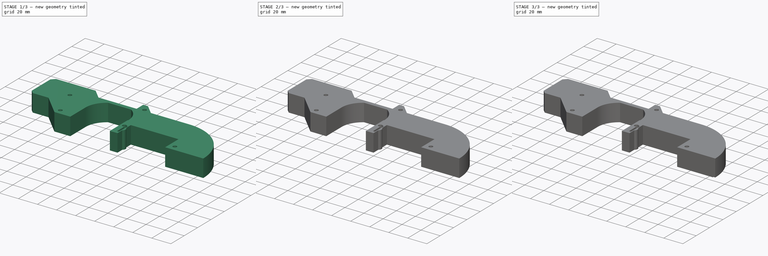
[diagram: build sequence overview — one tinted view per stage of 3, left to right]
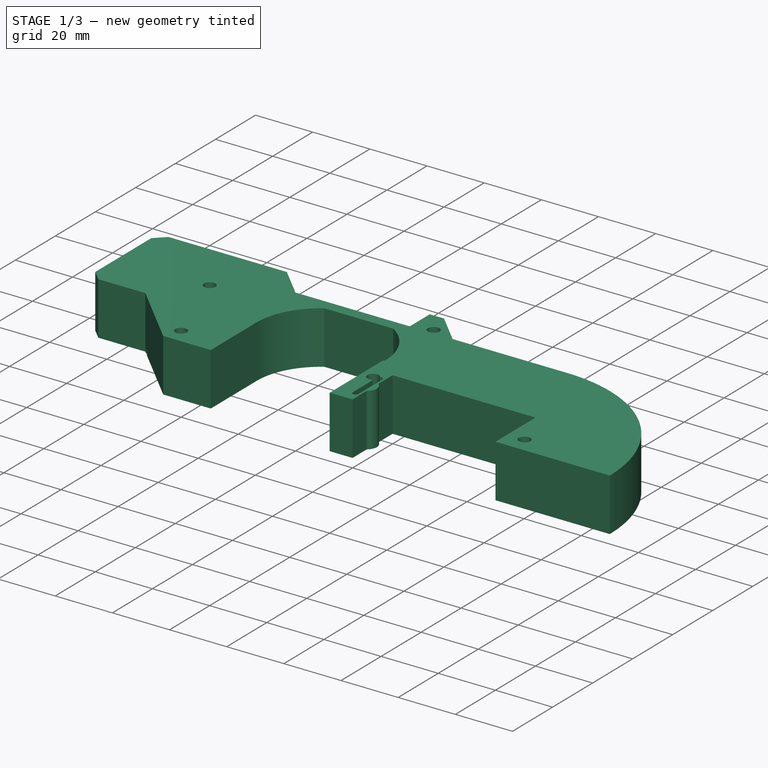
[diagram: stage 1 of 3 — iso view after this stage's code; geometry added in this stage tinted green]
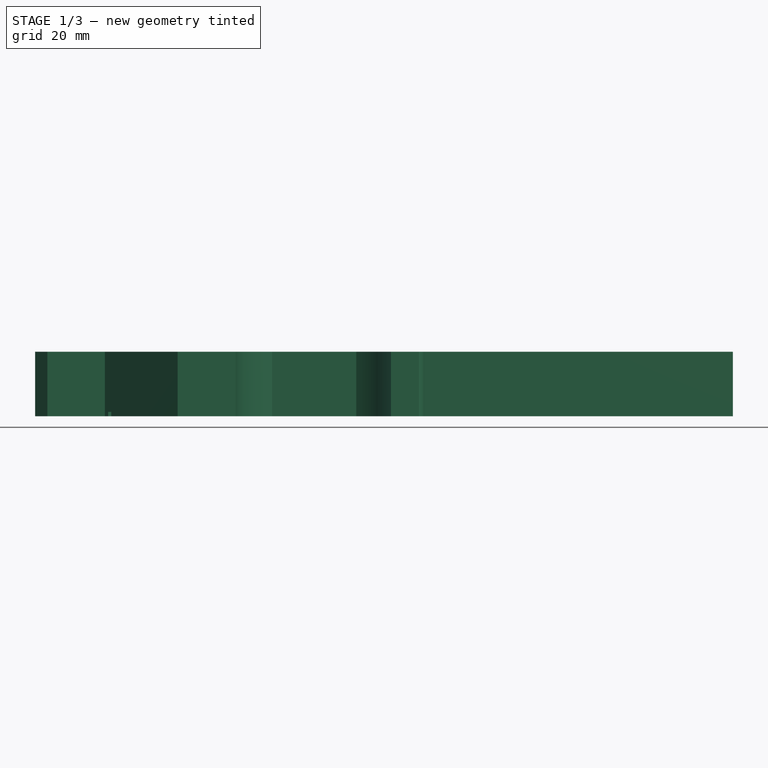
[diagram: stage 1 of 3 — front view after this stage's code; geometry added in this stage tinted green]
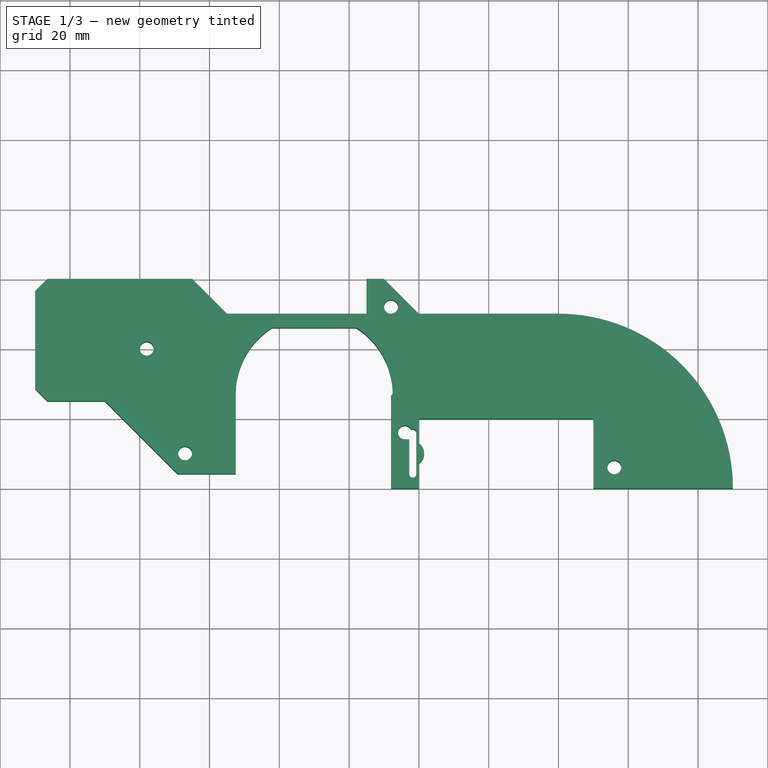
[diagram: stage 1 of 3 — top view after this stage's code; geometry added in this stage tinted green]
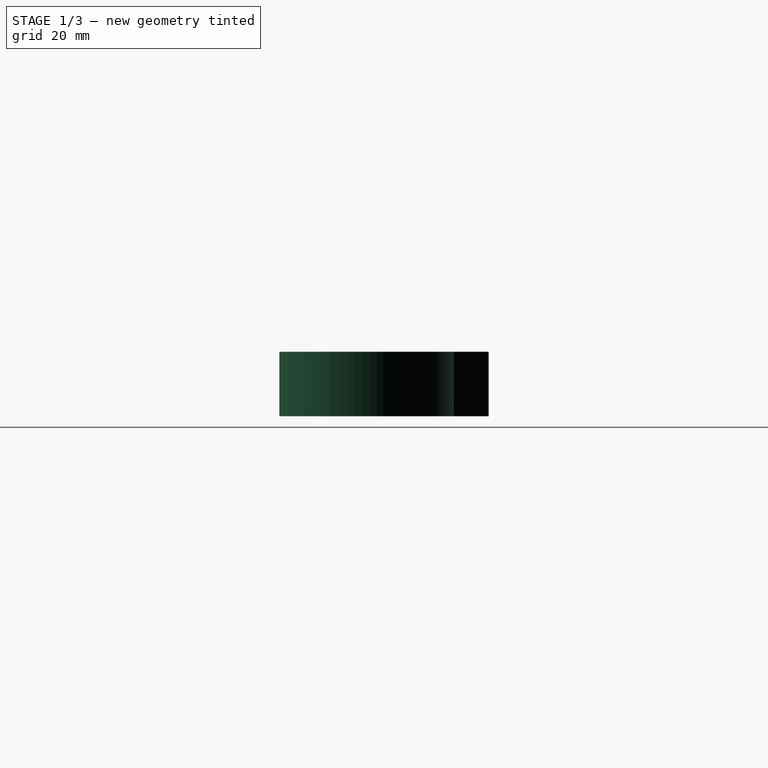
[diagram: stage 1 of 3 — right view after this stage's code; geometry added in this stage tinted green]
FCSTD DOCUMENT  (FreeCAD 0.18.4R)
Label: guide-right
License: All rights reserved
LicenseURL: http://en.wikipedia.org/wiki/All_rights_reserved
objects: Sketcher::SketchObject×7, PartDesign::Pocket×4, PartDesign::Pad×1, PartDesign::Plane×1, PartDesign::SubtractivePipe×1, Spreadsheet::Sheet×1, PartDesign::Body×1
note: 21 computed .brp shape members not serialized (recipe doc carries the construction recipe); baked Part::Feature solids carry a one-line shape summary decoded from their .brp

FEATURE [Sketcher::SketchObject] Sketch
  MapMode = 5
  Support = -> [XY_Plane001]
  sketch-geometry (40):
    g0: LineSegment StartX=0 StartY=20 StartZ=0 EndX=50 EndY=20 EndZ=0
    g1: LineSegment StartX=50 StartY=20 StartZ=0 EndX=50 EndY=0 EndZ=0
    g2: LineSegment StartX=50 StartY=0 StartZ=0 EndX=90 EndY=0 EndZ=0
    g3: LineSegment StartX=0 StartY=0 StartZ=0 EndX=-8 EndY=0 EndZ=0
    g4: LineSegment StartX=-52.5 StartY=4.14 StartZ=0 EndX=-69.14 EndY=4.14 EndZ=0
    g5: LineSegment StartX=-69.14 StartY=4.14 StartZ=0 EndX=-90 EndY=25 EndZ=0
    g6: LineSegment StartX=-90 StartY=25 StartZ=0 EndX=-106.464 EndY=25 EndZ=0
    g7: LineSegment StartX=-106.464 StartY=25 StartZ=0 EndX=-110 EndY=28.5355 EndZ=0
    g8: LineSegment StartX=-110 StartY=28.5355 StartZ=0 EndX=-110 EndY=56.4645 EndZ=0
    g9: LineSegment StartX=-110 StartY=56.4645 StartZ=0 EndX=-106.464 EndY=60 EndZ=0
    g10: LineSegment StartX=-106.464 StartY=60 StartZ=0 EndX=-65 EndY=60 EndZ=0
    g11: LineSegment StartX=-65 StartY=60 StartZ=0 EndX=-55 EndY=50 EndZ=0
    g12: LineSegment StartX=-55 StartY=50 StartZ=0 EndX=-15 EndY=50 EndZ=0
    g13: LineSegment StartX=-15 StartY=50 StartZ=0 EndX=-15 EndY=60 EndZ=0
    g14: LineSegment StartX=-15 StartY=60 StartZ=0 EndX=-10 EndY=60 EndZ=0
    g15: LineSegment StartX=-10 StartY=60 StartZ=0 EndX=0 EndY=50 EndZ=0
    g16: LineSegment StartX=0 StartY=50 StartZ=0 EndX=40 EndY=50 EndZ=0
    g17: ArcOfCircle CenterX=40 CenterY=0 CenterZ=0 NormalX=0 NormalY=0 NormalZ=1 AngleXU=0 Radius=50 StartAngle=0 EndAngle=1.5708
    g18: Circle CenterX=56 CenterY=6 CenterZ=0 NormalX=0 NormalY=0 NormalZ=1 AngleXU=0 Radius=2
    g19: ArcOfCircle CenterX=-4 CenterY=16 CenterZ=0 NormalX=0 NormalY=0 NormalZ=1 AngleXU=0 Radius=2 StartAngle=0.460493 EndAngle=4.71239
    g20: Circle CenterX=-8 CenterY=52 CenterZ=0 NormalX=0 NormalY=0 NormalZ=1 AngleXU=0 Radius=2
    g21: Circle CenterX=-67 CenterY=10 CenterZ=0 NormalX=0 NormalY=0 NormalZ=1 AngleXU=0 Radius=2
    g22: Circle CenterX=-78 CenterY=40 CenterZ=0 NormalX=0 NormalY=0 NormalZ=1 AngleXU=0 Radius=2
    g23: Circle [constr] CenterX=-30 CenterY=27 CenterZ=0 NormalX=0 NormalY=0 NormalZ=1 AngleXU=0 Radius=3.25
    g24: ArcOfCircle CenterX=-30 CenterY=27 CenterZ=0 NormalX=0 NormalY=0 NormalZ=1 AngleXU=0 Radius=22.5 StartAngle=0 EndAngle=1.00553
    g25: LineSegment StartX=-52.5 StartY=4.14 StartZ=0 EndX=-52.5 EndY=27 EndZ=0
    g26: LineSegment StartX=-42.052 StartY=46 StartZ=0 EndX=-17.948 EndY=46 EndZ=0
    g27: ArcOfCircle CenterX=-30 CenterY=27 CenterZ=0 NormalX=0 NormalY=0 NormalZ=1 AngleXU=0 Radius=22.5 StartAngle=2.13607 EndAngle=3.14159
    g28: LineSegment StartX=-7.5 StartY=27 StartZ=0 EndX=-8 EndY=26.5 EndZ=0
    g29: LineSegment StartX=-8 StartY=26.5 StartZ=0 EndX=-8 EndY=0 EndZ=0
    g30: LineSegment StartX=0 StartY=20 StartZ=0 EndX=0 EndY=12.8723 EndZ=0
    g31: LineSegment StartX=0 StartY=0 StartZ=0 EndX=-4e-16 EndY=7.12772 EndZ=0
    g32: ArcOfCircle CenterX=-2 CenterY=10 CenterZ=0 NormalX=0 NormalY=0 NormalZ=1 AngleXU=0 Radius=3.5 StartAngle=5.32063 EndAngle=7.24574
    g33: ArcOfCircle CenterX=-1.75 CenterY=16 CenterZ=0 NormalX=0 NormalY=0 NormalZ=1 AngleXU=0 Radius=1 StartAngle=3e-16 EndAngle=2.04692
    g34: ArcOfCircle CenterX=-1.75 CenterY=4 CenterZ=0 NormalX=0 NormalY=0 NormalZ=1 AngleXU=0 Radius=1 StartAngle=3.14159 EndAngle=6.28319
    g35: LineSegment StartX=-2.75 StartY=14 StartZ=0 EndX=-2.75 EndY=4 EndZ=0
    g36: LineSegment StartX=-0.75 StartY=16 StartZ=0 EndX=-0.75 EndY=4 EndZ=0
    g37: LineSegment [constr] StartX=-2.75 StartY=10 StartZ=0 EndX=-0.75 EndY=10 EndZ=0
    g38: LineSegment StartX=-4 StartY=14 StartZ=0 EndX=-2.75 EndY=14 EndZ=0
    g39: LineSegment [constr] StartX=-1.75 StartY=16 StartZ=0 EndX=-1.75 EndY=4 EndZ=0
  constraints (120):
    c: PointOnObject(g0,g-2)
    c: Horizontal(g0)
    c: Coincident(g0,g1)
    c: PointOnObject(g1,g-1)
    c: Vertical(g1)
    c: Coincident(g1,g2)
    c: Horizontal(g2)
    c: PointOnObject(g3,g-1)
    c: Horizontal(g4)
    c: Coincident(g4,g5)
    c: Coincident(g5,g6)
    c: Horizontal(g6)
    c: Coincident(g6,g7)
    c: Coincident(g7,g8)
    c: Vertical(g8)
    c: Coincident(g8,g9)
    c: Coincident(g9,g10)
    c: Horizontal(g10)
    c: Coincident(g10,g11)
    c: Coincident(g11,g12)
    c: Horizontal(g12)
    c: Coincident(g12,g13)
    c: Vertical(g13)
    c: Coincident(g13,g14)
    c: Horizontal(g14)
    c: Coincident(g14,g15)
    c: Coincident(g15,g16)
    c: Horizontal(g16)
    c: Coincident(g17,g16)
    c: Coincident(g17,g2)
    c: Tangent(g17,g16)
    c: DistanceY(g-1,g0) = 20
    c: DistanceX(g-1,g1) = 50
    c: PointOnObject(g17,g2)
    c: DistanceX(g-1,g17) = 40
    c: Diameter(g17) = 100
    c: PointOnObject(g12,g16)
    c: PointOnObject(g15,g-2)
    c: Angle(g16,g15) = 2.35619
    c: DistanceY(g-1,g14) = 60
    c: DistanceY(g-1,g6) = 25
    c: DistanceX(g7,g-1) = 110
    c: Angle(g6,g7) = 2.35619
    c: Distance(g7) = 5
    c: Distance(g9) = 5
    c: Angle(g9,g10) = 2.35619
    c: PointOnObject(g10,g14)
    c: DistanceX(g5,g-1) = 90
    c: DistanceX(g4,g-1) = 69.14
    c: DistanceY(g-1,g4) = 4.14
    c: Diameter(g22) = 4
    c: Diameter(g21) = 4
    c: Diameter(g20) = 4
    c: Diameter(g19) = 4
    c: Diameter(g18) = 4
    c: DistanceX(g22,g-1) = 78
    c: DistanceY(g-1,g22) = 40
    c: DistanceX(g19,g-1) = 4
    c: DistanceY(g-1,g19) = 16
    c: DistanceY(g-1,g18) = 6
    c: DistanceX(g-1,g18) = 56
    c: DistanceX(g20,g-1) = 8
    c: DistanceY(g-1,g20) = 52
    c: DistanceY(g-1,g21) = 10
    c: DistanceX(g21,g-1) = 67
    c: Angle(g10,g11) = 2.35619
    c: DistanceX(g11,g-1) = 55
    c: DistanceY(g-1,g23) = 27
    c: DistanceX(g23,g-1) = 30
    c: Diameter(g23) = 6.5
    c: DistanceX(g12,g-1) = 15
    c: Coincident(g24,g23)
    c: Diameter(g24) = 45
    c: Coincident(g25,g4)
    c: Vertical(g25)
    c: Coincident(g27,g25)
    c: Tangent(g25,g24)
    c: Horizontal(g26)
    c: Equal(g24,g27)
    c: Coincident(g24,g26)
    c: Coincident(g27,g26)
    c: Coincident(g24,g27)
    c: DistanceY(g24,g12) = 4
    c: Coincident(g28,g29)
    c: Vertical(g29)
    c: Coincident(g29,g3)
    c: DistanceY(g-1,g24) = 27
    c: Angle(g29,g28) = 2.35619
    c: Coincident(g28,g24)
    c: DistanceX(g3,g-1) = 8
    c: Coincident(g0,g30)
    c: PointOnObject(g30,g-2)
    c: Coincident(g3,g31)
    c: PointOnObject(g31,g-2)
    c: Coincident(g32,g31)
    c: Coincident(g30,g32)
    c: DistanceY(g3,g32) = 10
    c: Coincident(g3,g-1)
    c: Diameter(g32) = 7
    c: DistanceX(g32,g3) = 2
    c: Tangent(g33,g36) = 1.5708
    c: Tangent(g35,g34) = -1.5708
    c: Tangent(g36,g34) = 1.5708
    c: Vertical(g35)
    c: Equal(g33,g34)
    c: PointOnObject(g37,g35)
    c: PointOnObject(g32,g37)
    c: DistanceX(g34,g3) = 0.75
    c: DistanceY(g34,g33) = 12
    c: Diameter(g34) = 2
    c: PointOnObject(g37,g36)
    c: Coincident(g33,g19)
    c: Symmetric(g33,g34,g37)
    c: Horizontal(g38)
    c: Tangent(g38,g19)
    c: Coincident(g19,g38)
    c: Coincident(g35,g38)
    c: Coincident(g39,g33)
    c: Coincident(g39,g34)
    c: Vertical(g39)
FEATURE [PartDesign::Pad] Pad
  Length = 18.5
  Length2 = 100
  Profile = -> Sketch
  Type = 0
FEATURE [PartDesign::Plane] DatumPlane
  Length = 205.672
  MapMode = 5
  Placement = pos=(-32.5,-32.5,0) rot=(0.862856,-0.357407,-0.357407;1.71777rad)
  ResizeMode = 0
  Support = -> [Pad]
  Width = 43.2529
FEATURE [Sketcher::SketchObject] Sketch002
  MapMode = 5
  Placement = pos=(-32.5,-32.5,0) rot=(0.862856,-0.357407,-0.357407;1.71777rad)
  Support = -> [DatumPlane]
  expr: Constraints[17] = Spreadsheet.tape_width - 6.75
  sketch-geometry (6):
    g0: LineSegment StartX=-80 StartY=-18.75 StartZ=0 EndX=-70 EndY=-18.75 EndZ=0
    g1: LineSegment StartX=-70 StartY=-18.75 StartZ=0 EndX=-70 EndY=-0.25 EndZ=0
    g2: LineSegment StartX=-70 StartY=-0.25 StartZ=0 EndX=-78.75 EndY=-0.25 EndZ=0
    g3: LineSegment StartX=-78.75 StartY=-0.25 StartZ=0 EndX=-78.75 EndY=1.25 EndZ=0
    g4: LineSegment StartX=-78.75 StartY=1.25 StartZ=0 EndX=-80 EndY=1.25 EndZ=0
    g5: LineSegment StartX=-80 StartY=1.25 StartZ=0 EndX=-80 EndY=-18.75 EndZ=0
  constraints (18):
    c: Horizontal(g0)
    c: Coincident(g0,g1)
    c: Vertical(g1)
    c: Coincident(g1,g2)
    c: Horizontal(g2)
    c: Coincident(g2,g3)
    c: Vertical(g3)
    c: Coincident(g3,g4)
    c: Horizontal(g4)
    c: Coincident(g4,g5)
    c: Coincident(g5,g0)
    c: Vertical(g5)
    c: DistanceY(g3,g3) = 1.5
    c: DistanceX(g4,g4) = 1.25
    c: DistanceY(g5,g5) = 20
    c: DistanceX(g0,g-1) = 80
    c: DistanceX(g0,g0) = 10
    c: DistanceY(g-1,g3) = 1.25
FEATURE [Sketcher::SketchObject] Sketch001  label="loft-line"
  MapMode = 5
  Placement = pos=(0,0,18.5) rot=(0,0,1;0rad)
  Support = -> [Pad]
  sketch-geometry (5):
    g0: LineSegment StartX=-72.9307 StartY=0 StartZ=0 EndX=-58.9654 EndY=13.9654 EndZ=0
    g1: ArcOfCircle CenterX=-45 CenterY=0 CenterZ=0 NormalX=0 NormalY=0 NormalZ=1 AngleXU=0 Radius=19.75 StartAngle=1.5708 EndAngle=2.35619
    g2: LineSegment StartX=-45 StartY=19.75 StartZ=0 EndX=40 EndY=19.75 EndZ=0
    g3: ArcOfCircle CenterX=40 CenterY=0 CenterZ=0 NormalX=0 NormalY=0 NormalZ=1 AngleXU=0 Radius=19.75 StartAngle=0 EndAngle=1.5708
    g4: LineSegment StartX=59.75 StartY=0 StartZ=0 EndX=59.75 EndY=-2 EndZ=0
  constraints (18):
    c: Coincident(g1,g0)
    c: Coincident(g2,g1)
    c: Horizontal(g2)
    c: Coincident(g3,g2)
    c: Tangent(g2,g3)
    c: Tangent(g1,g2)
    c: Tangent(g1,g0)
    c: PointOnObject(g3,g-1)
    c: Diameter(g3) = 39.5
    c: DistanceX(g-1,g3) = 40
    c: PointOnObject(g3,g-1)
    c: DistanceX(g1,g-1) = 45
    c: PointOnObject(g1,g-1)
    c: Angle(g0,g2) = 2.35619
    c: Coincident(g4,g3)
    c: Vertical(g4)
    c: PointOnObject(g0,g-1)
    c: DistanceY(g4,g4) = 2
FEATURE [PartDesign::SubtractivePipe] SubtractivePipe
  AuxilleryCurvelinear = true
  AuxillerySpineTangent = false
  BaseFeature = -> Pad
  Binormal = (0,0,0)
  Mode = 0
  Profile = -> Sketch002
  Spine = -> Sketch001 [Edge1,Edge2,Edge3,Edge4]
  SpineTangent = false
  Transformation = 0
  Transition = 0
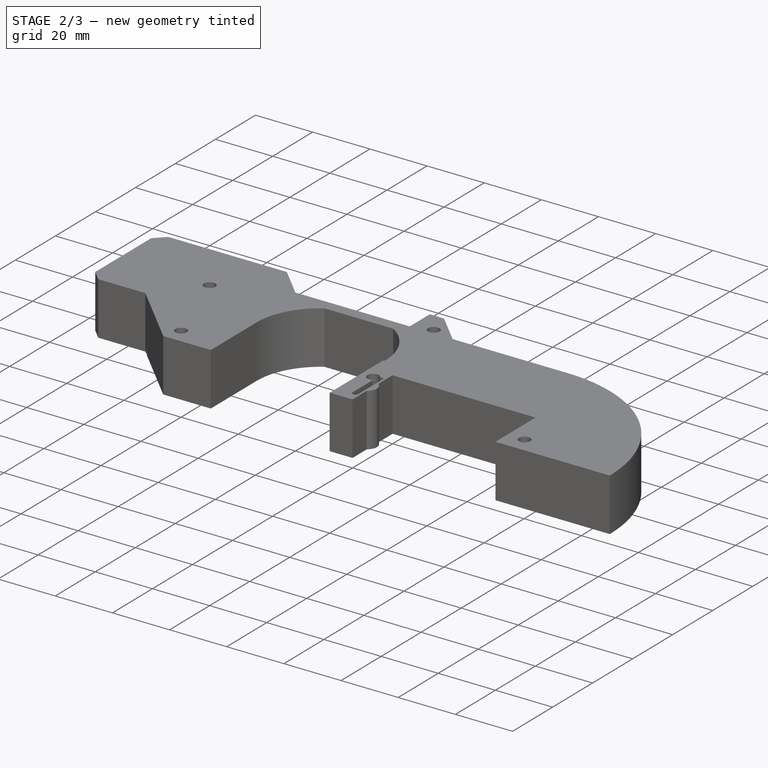
[diagram: stage 2 of 3 — iso view after this stage's code; geometry added in this stage tinted green]
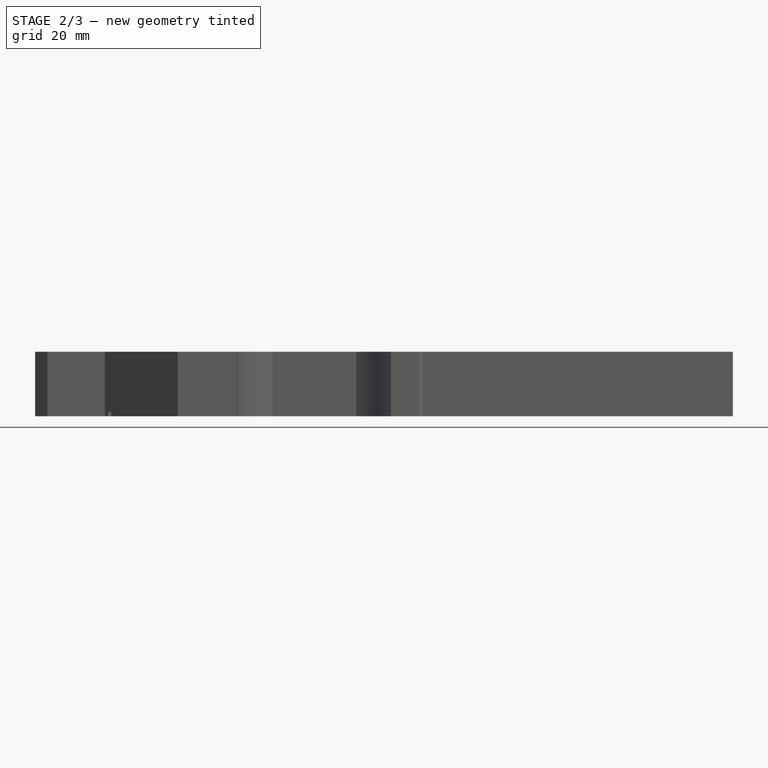
[diagram: stage 2 of 3 — front view after this stage's code; geometry added in this stage tinted green]
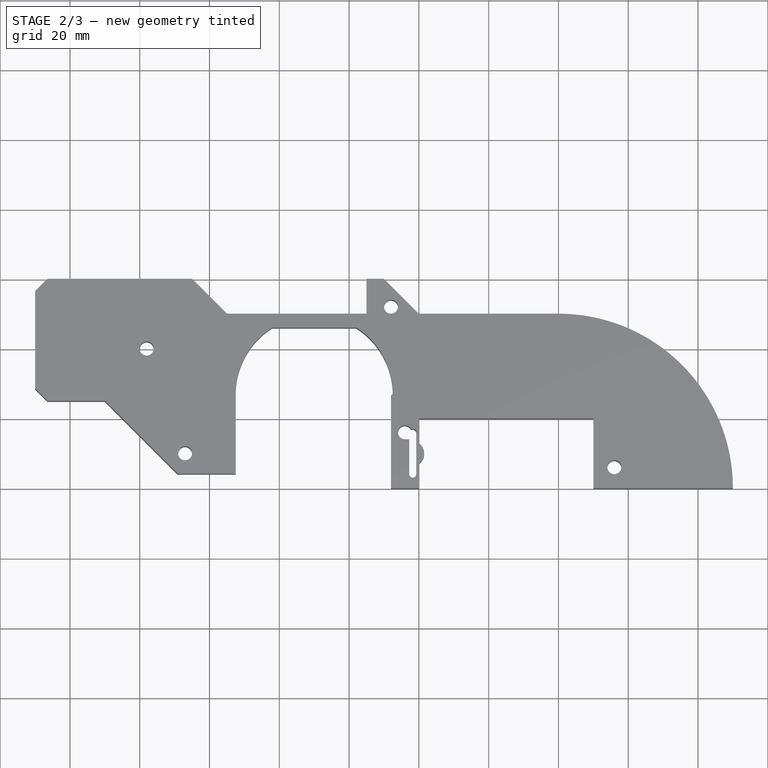
[diagram: stage 2 of 3 — top view after this stage's code; geometry added in this stage tinted green]
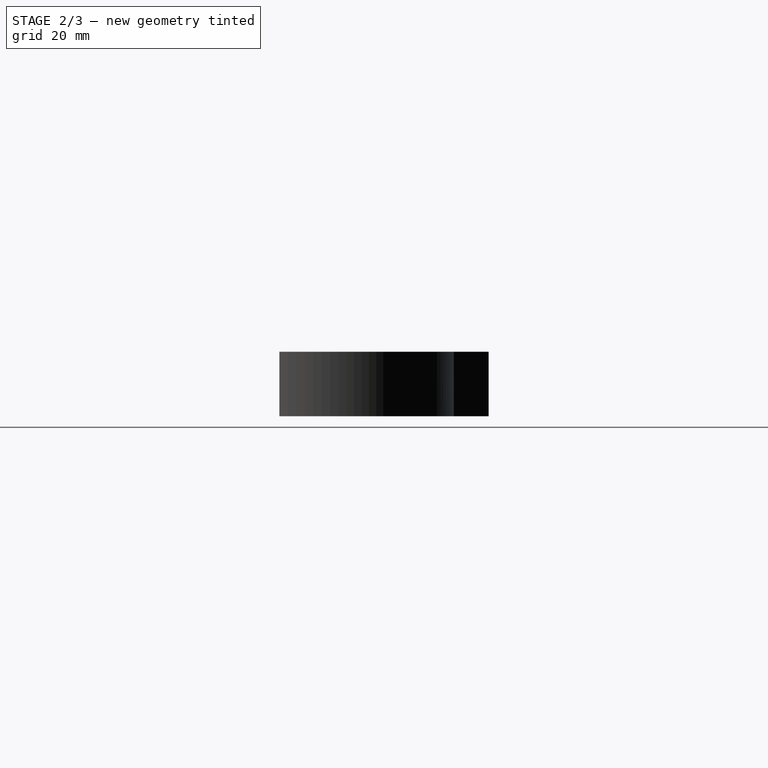
[diagram: stage 2 of 3 — right view after this stage's code; geometry added in this stage tinted green]
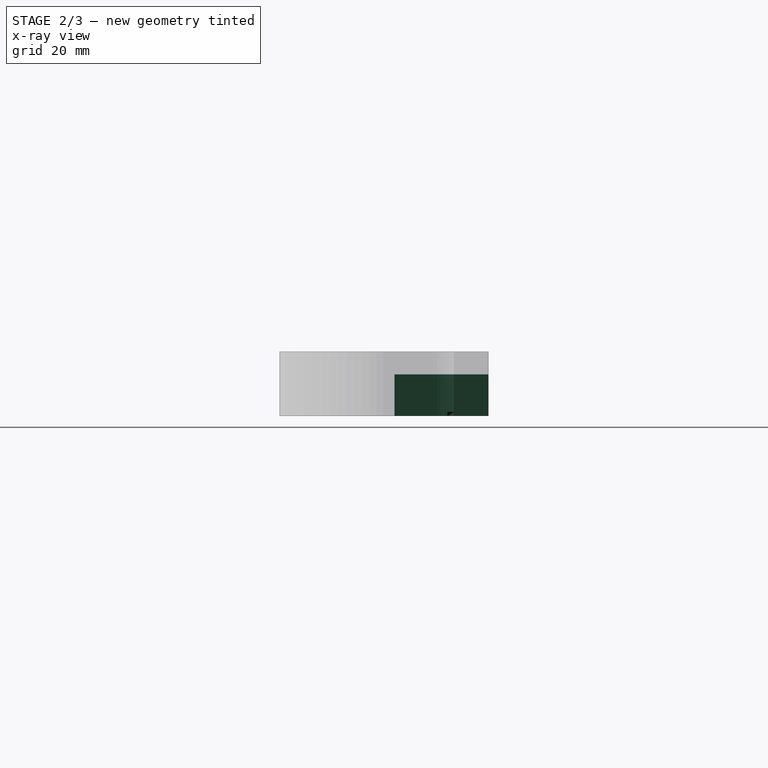
[diagram: stage 2 of 3 — x-ray composite at the right view; earlier geometry ghosted, this stage's added geometry solid]
FEATURE [Sketcher::SketchObject] Sketch003
  MapMode = 5
  Support = -> [XY_Plane]
  sketch-geometry (4):
    g0: LineSegment StartX=0 StartY=50 StartZ=0 EndX=2 EndY=48 EndZ=0
    g1: LineSegment StartX=2 StartY=48 StartZ=0 EndX=10 EndY=48 EndZ=0
    g2: LineSegment StartX=10 StartY=48 StartZ=0 EndX=10 EndY=50 EndZ=0
    g3: LineSegment StartX=10 StartY=50 StartZ=0 EndX=0 EndY=50 EndZ=0
  constraints (12):
    c: PointOnObject(g0,g-2)
    c: Coincident(g0,g1)
    c: Horizontal(g1)
    c: Coincident(g1,g2)
    c: Coincident(g2,g3)
    c: Coincident(g3,g0)
    c: Horizontal(g3)
    c: Vertical(g2)
    c: DistanceY(g-1,g0) = 50
    c: DistanceY(g-1,g0) = 48
    c: DistanceX(g-1,g2) = 10
    c: Angle(g0,g3) = 0.785398
FEATURE [PartDesign::Pocket] Pocket
  BaseFeature = -> SubtractivePipe
  Length = 1.25
  Length2 = 100
  Profile = -> Sketch003
  Reversed = true
  Type = 0
  expr: Length = Spreadsheet.tape_width - 6.75
FEATURE [Spreadsheet::Sheet] Spreadsheet
  cells = A1=tape width; B1(tape_width)=8
FEATURE [Sketcher::SketchObject] Sketch004
  MapMode = 5
  Support = -> [XY_Plane001]
  sketch-geometry (9):
    g0: LineSegment StartX=-96.5 StartY=60 StartZ=0 EndX=-96.5 EndY=50.5 EndZ=0
    g1: LineSegment StartX=-96.5 StartY=50.5 StartZ=0 EndX=-96.375 EndY=50.5 EndZ=0
    g2: LineSegment StartX=-96.375 StartY=50.5 StartZ=0 EndX=-96.375 EndY=33 EndZ=0
    g3: LineSegment StartX=-96.375 StartY=33 StartZ=0 EndX=-83.625 EndY=33 EndZ=0
    g4: LineSegment StartX=-83.625 StartY=33 StartZ=0 EndX=-83.625 EndY=50.5 EndZ=0
    g5: LineSegment StartX=-83.625 StartY=50.5 StartZ=0 EndX=-83.5 EndY=50.5 EndZ=0
    g6: LineSegment StartX=-83.5 StartY=50.5 StartZ=0 EndX=-83.5 EndY=60 EndZ=0
    g7: LineSegment StartX=-83.5 StartY=60 StartZ=0 EndX=-96.5 EndY=60 EndZ=0
    g8: LineSegment [constr] StartX=-90 StartY=60 StartZ=0 EndX=-90 EndY=33 EndZ=0
  constraints (26):
    c: Vertical(g0)
    c: Coincident(g0,g1)
    c: Horizontal(g1)
    c: Coincident(g1,g2)
    c: Vertical(g2)
    c: Coincident(g2,g3)
    c: Horizontal(g3)
    c: Coincident(g3,g4)
    c: Vertical(g4)
    c: Coincident(g4,g5)
    c: Horizontal(g5)
    c: Coincident(g5,g6)
    c: Vertical(g6)
    c: Coincident(g6,g7)
    c: Coincident(g7,g0)
    c: PointOnObject(g8,g7)
    c: PointOnObject(g8,g3)
    c: Symmetric(g0,g6,g8)
    c: Symmetric(g2,g3,g8)
    c: PointOnObject(g4,g1)
    c: DistanceY(g-1,g6) = 60
    c: DistanceY(g8,g8) = 27
    c: DistanceY(g6,g6) = 9.5
    c: DistanceX(g3,g3) = 12.75
    c: DistanceX(g8,g-1) = 90
    c: DistanceX(g7,g7) = 13
FEATURE [PartDesign::Pocket] Pocket001
  BaseFeature = -> Pocket
  Length = 12
  Length2 = 100
  Profile = -> Sketch004
  Reversed = true
  Type = 0
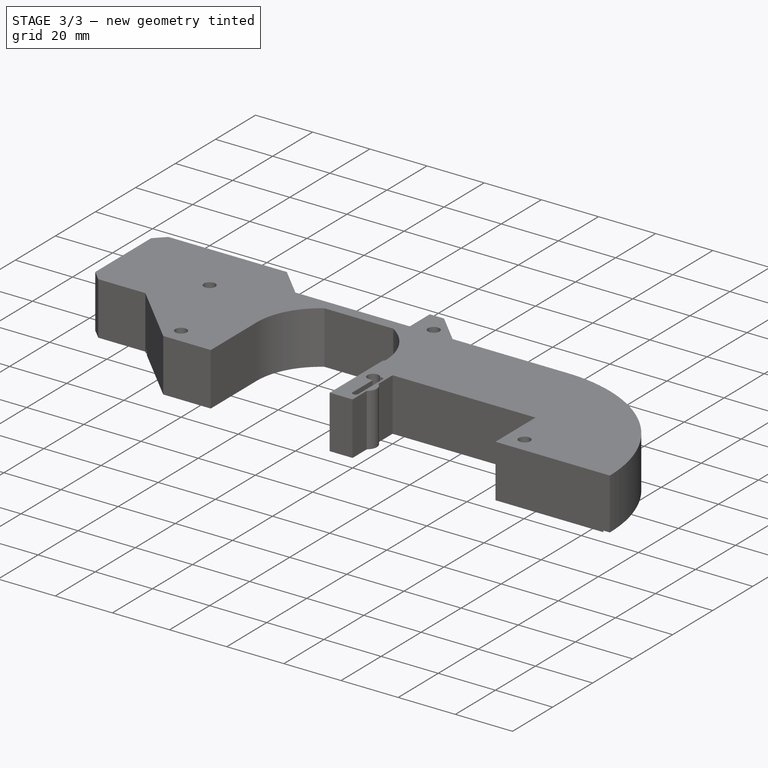
[diagram: stage 3 of 3 — iso view after this stage's code; geometry added in this stage tinted green]
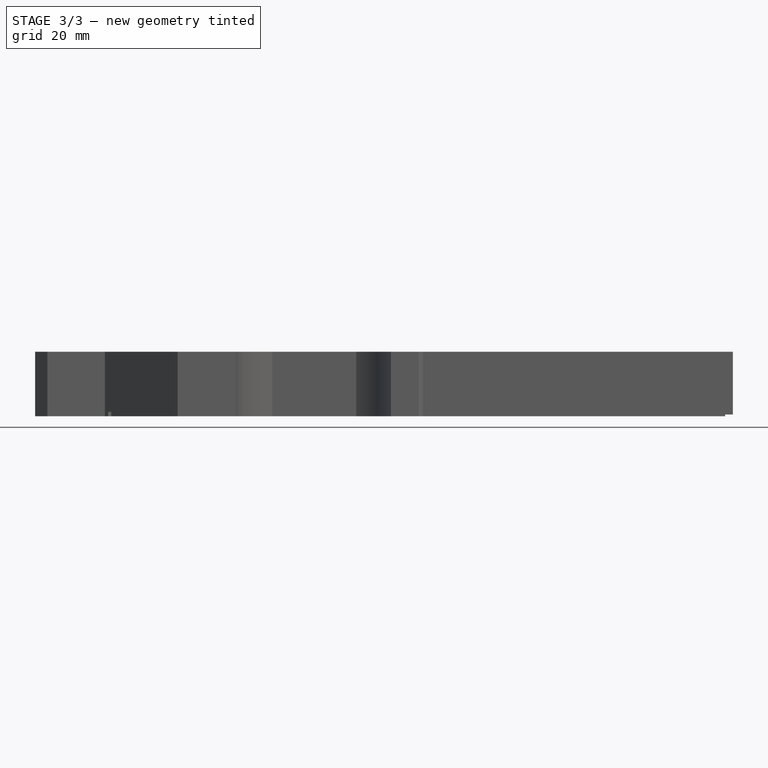
[diagram: stage 3 of 3 — front view after this stage's code; geometry added in this stage tinted green]
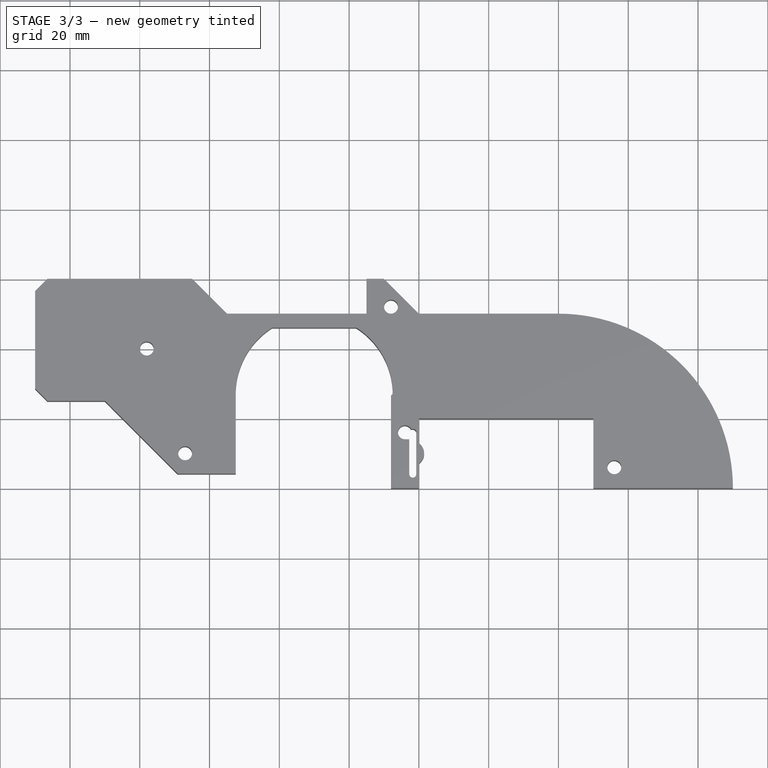
[diagram: stage 3 of 3 — top view after this stage's code; geometry added in this stage tinted green]
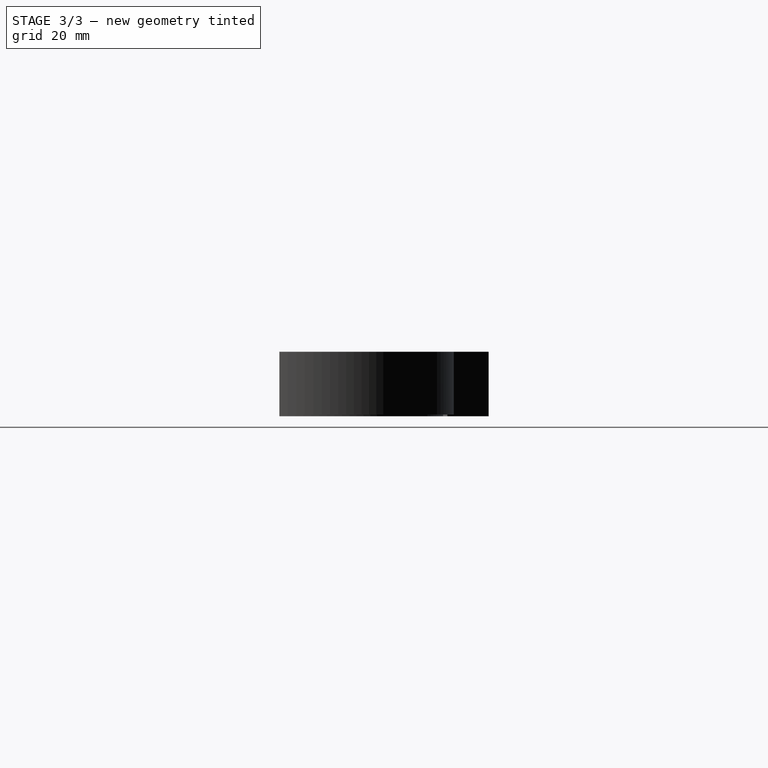
[diagram: stage 3 of 3 — right view after this stage's code; geometry added in this stage tinted green]
FEATURE [Sketcher::SketchObject] Sketch005
  MapMode = 5
  Support = -> [XY_Plane001]
  sketch-geometry (5):
    g0: LineSegment StartX=-106 StartY=51 StartZ=0 EndX=-74 EndY=51 EndZ=0
    g1: LineSegment StartX=-74 StartY=51 StartZ=0 EndX=-74 EndY=43 EndZ=0
    g2: LineSegment StartX=-74 StartY=43 StartZ=0 EndX=-106 EndY=43 EndZ=0
    g3: LineSegment StartX=-106 StartY=43 StartZ=0 EndX=-106 EndY=51 EndZ=0
    g4: LineSegment [constr] StartX=-90 StartY=51 StartZ=0 EndX=-90 EndY=43 EndZ=0
  constraints (15):
    c: Coincident(g0,g1)
    c: Coincident(g1,g2)
    c: Coincident(g2,g3)
    c: Coincident(g3,g0)
    c: Horizontal(g0)
    c: Horizontal(g2)
    c: Vertical(g1)
    c: Vertical(g3)
    c: PointOnObject(g4,g0)
    c: PointOnObject(g4,g2)
    c: Symmetric(g0,g0,g4)
    c: DistanceX(g4,g-1) = 90
    c: DistanceX(g2,g2) = 32
    c: DistanceY(g3,g3) = 8
    c: DistanceY(g-1,g0) = 51
FEATURE [PartDesign::Pocket] Pocket002
  BaseFeature = -> Pocket001
  Length = 15
  Length2 = 100
  Profile = -> Sketch005
  Reversed = true
  Type = 0
FEATURE [Sketcher::SketchObject] Sketch006
  MapMode = 5
  Support = -> [XY_Plane001]
  sketch-geometry (6):
    g0: ArcOfCircle CenterX=40 CenterY=0 CenterZ=0 NormalX=0 NormalY=0 NormalZ=1 AngleXU=0 Radius=47.75 StartAngle=6.26224 EndAngle=7.85398
    g1: ArcOfCircle CenterX=40 CenterY=0 CenterZ=0 NormalX=0 NormalY=0 NormalZ=1 AngleXU=0 Radius=50.25 StartAngle=6.26328 EndAngle=7.85398
    g2: LineSegment StartX=40 StartY=47.75 StartZ=0 EndX=9.5 EndY=47.75 EndZ=0
    g3: LineSegment StartX=9.5 StartY=47.75 StartZ=0 EndX=9.5 EndY=50.25 EndZ=0
    g4: LineSegment StartX=9.5 StartY=50.25 StartZ=0 EndX=39.9999 EndY=50.25 EndZ=0
    g5: LineSegment StartX=87.7395 StartY=-1 StartZ=0 EndX=90.24 EndY=-1 EndZ=0
  constraints (18):
    c: PointOnObject(g0,g-1)
    c: Coincident(g1,g0)
    c: Tangent(g0,g2) = -1.5708
    c: Coincident(g2,g3)
    c: Vertical(g3)
    c: Coincident(g3,g4)
    c: Coincident(g4,g1)
    c: Coincident(g0,g5)
    c: Horizontal(g5)
    c: Horizontal(g4)
    c: Horizontal(g2)
    c: DistanceX(g-1,g2) = 9.5
    c: Tangent(g1,g4)
    c: Coincident(g5,g1)
    c: DistanceY(g0,g-1) = 1
    c: DistanceX(g-1,g0) = 40
    c: Diameter(g0) = 95.5
    c: Diameter(g1) = 100.5
FEATURE [PartDesign::Pocket] Pocket003
  BaseFeature = -> Pocket002
  Length = 0.5
  Length2 = 100
  Profile = -> Sketch006
  Reversed = true
  Type = 0
  expr: Length = Spreadsheet.tape_width - 7.5
FEATURE [PartDesign::Body] Body
  Group = -> [Sketch,Pad,DatumPlane,Sketch002,Sketch001,SubtractivePipe,Sketch003,Pocket,Sketch004,Pocket001,Sketch005,Pocket002,Sketch006,Pocket003]
  Origin = -> Origin
  Tip = -> Pocket003
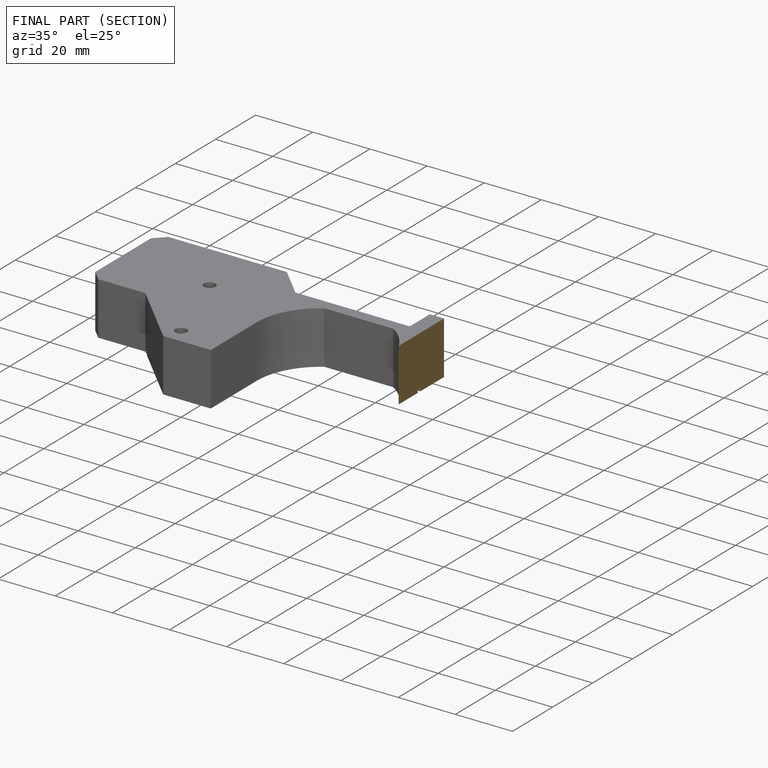
[diagram: finished part — half-section view (interior)]
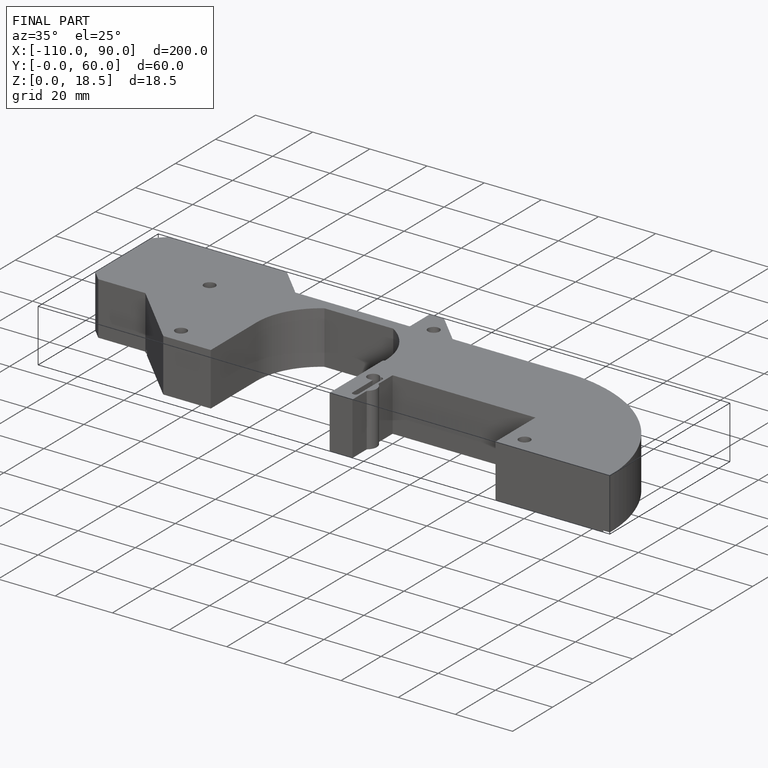
[diagram: finished part — iso view with bounding-box wireframe]
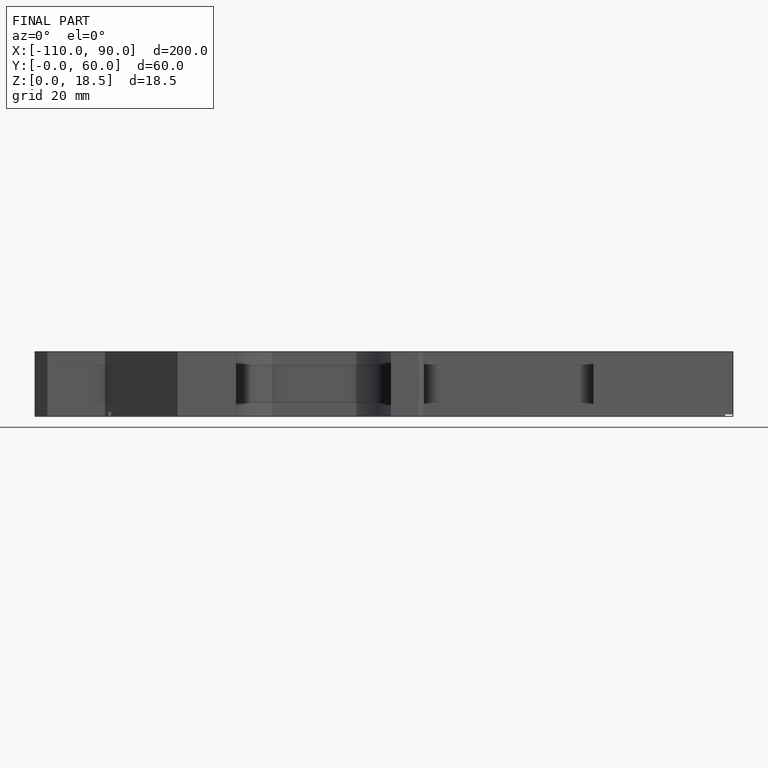
[diagram: finished part — front view with bounding-box wireframe]
